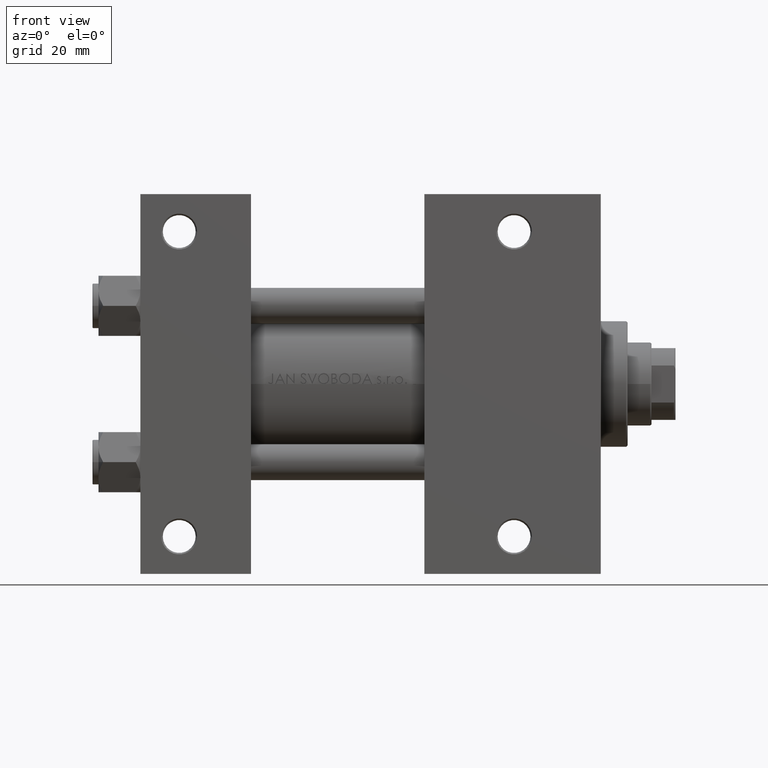
[diagram: clean part render]
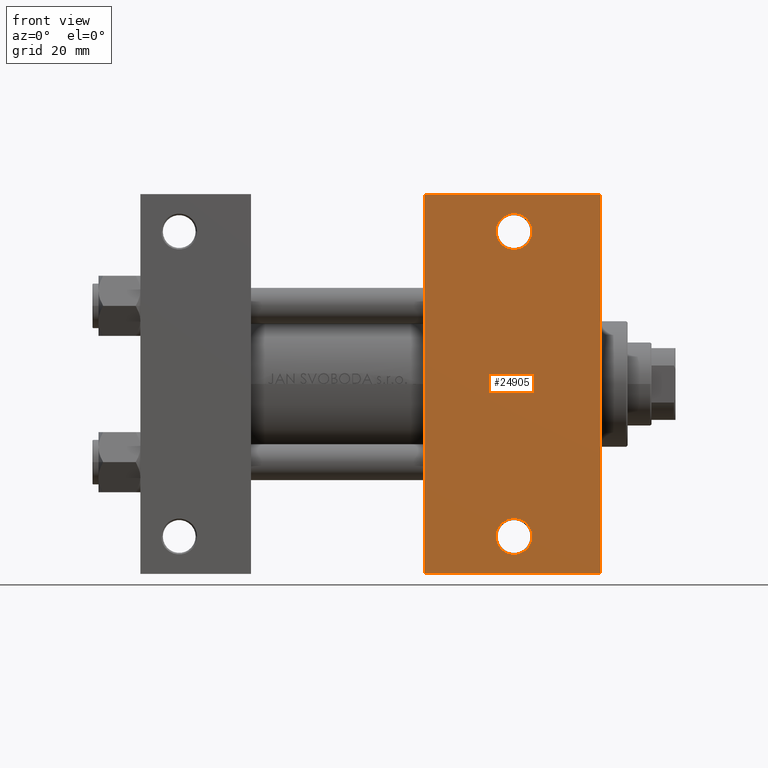
[diagram: same view with one face highlighted and labeled with its STEP entity id]
A machine part, front view. The second image highlights one B-rep face of the part: STEP entity #24905.
In plain terms, the highlighted planar face has unit normal (0, -1, 0).
Its self-contained STEP definition (entity closure, byte-faithful):
#263 = LINE ( 'NONE', #30866, #10830 ) ;
#782 = EDGE_LOOP ( 'NONE', ( #39078, #34487 ) ) ;
#856 = CARTESIAN_POINT ( 'NONE',  ( 94.99999999999998579, -63.50000000000000000, -37.50000000000000000 ) ) ;
#955 = AXIS2_PLACEMENT_3D ( 'NONE', #14881, #22396, #41695 ) ;
#1443 = EDGE_LOOP ( 'NONE', ( #25680, #5901 ) ) ;
#1496 = EDGE_CURVE ( 'NONE', #14700, #11943, #20316, .T. ) ;
#2037 = ORIENTED_EDGE ( 'NONE', *, *, #27111, .T. ) ;
#2235 = VECTOR ( 'NONE', #25699, 1000.000000000000000 ) ;
#2444 = ORIENTED_EDGE ( 'NONE', *, *, #17044, .F. ) ;
#2798 = CARTESIAN_POINT ( 'NONE',  ( 154.0000000000000000, 63.50000000000000000, -37.50000000000000000 ) ) ;
#4412 = VERTEX_POINT ( 'NONE', #37037 ) ;
#4544 = AXIS2_PLACEMENT_3D ( 'NONE', #9479, #35822, #13252 ) ;
#5225 = FACE_BOUND ( 'NONE', #1443, .T. ) ;
#5582 = CIRCLE ( 'NONE', #35229, 5.999499999999990507 ) ;
#5901 = ORIENTED_EDGE ( 'NONE', *, *, #48315, .T. ) ;
#6388 = CARTESIAN_POINT ( 'NONE',  ( 154.0000000000000000, 37.50000000000000000, -37.50000000000000000 ) ) ;
#6708 = VECTOR ( 'NONE', #34155, 1000.000000000000000 ) ;
#6710 = AXIS2_PLACEMENT_3D ( 'NONE', #33753, #18470, #18964 ) ;
#7315 = DIRECTION ( 'NONE',  ( -1.000000000000000000, 0.000000000000000000, 0.000000000000000000 ) ) ;
#7334 = CARTESIAN_POINT ( 'NONE',  ( 95.00000000000000000, 37.50000000000000000, -37.50000000000000000 ) ) ;
#9479 = CARTESIAN_POINT ( 'NONE',  ( 154.0000000000000000, 37.50000000000000000, -37.50000000000000000 ) ) ;
#9641 = DIRECTION ( 'NONE',  ( -1.000000000000000000, 0.000000000000000000, 0.000000000000000000 ) ) ;
#9675 = CIRCLE ( 'NONE', #37694, 5.999500000000004718 ) ;
#10830 = VECTOR ( 'NONE', #11826, 1000.000000000000000 ) ;
#11103 = CARTESIAN_POINT ( 'NONE',  ( 153.9999999999999716, -63.50000000000002842, -37.50000000000000000 ) ) ;
#11826 = DIRECTION ( 'NONE',  ( 1.000000000000000000, 0.000000000000000000, 0.000000000000000000 ) ) ;
#11943 = VERTEX_POINT ( 'NONE', #20943 ) ;
#13252 = DIRECTION ( 'NONE',  ( -1.000000000000000000, 0.000000000000000000, -0.000000000000000000 ) ) ;
#14700 = VERTEX_POINT ( 'NONE', #35062 ) ;
#14881 = CARTESIAN_POINT ( 'NONE',  ( 125.0000000000000000, -51.00000000000000000, -37.50000000000000000 ) ) ;
#16740 = VECTOR ( 'NONE', #31569, 1000.000000000000000 ) ;
#17044 = EDGE_CURVE ( 'NONE', #21639, #41169, #30384, .T. ) ;
#17054 = VERTEX_POINT ( 'NONE', #11103 ) ;
#18470 = DIRECTION ( 'NONE',  ( -0.000000000000000000, -0.000000000000000000, 1.000000000000000000 ) ) ;
#18964 = DIRECTION ( 'NONE',  ( -1.000000000000000000, 0.000000000000000000, 0.000000000000000000 ) ) ;
#20316 = CIRCLE ( 'NONE', #6710, 5.999500000000004718 ) ;
#20523 = PLANE ( 'NONE',  #4544 ) ;
#20881 = EDGE_CURVE ( 'NONE', #21639, #23392, #263, .T. ) ;
#20943 = CARTESIAN_POINT ( 'NONE',  ( 130.9994999999999834, 50.99999999999999289, -37.50000000000000000 ) ) ;
#20962 = VERTEX_POINT ( 'NONE', #28346 ) ;
#21425 = CARTESIAN_POINT ( 'NONE',  ( 125.0000000000000000, -51.00000000000000000, -37.50000000000000000 ) ) ;
#21639 = VERTEX_POINT ( 'NONE', #48273 ) ;
#22396 = DIRECTION ( 'NONE',  ( -0.000000000000000000, -0.000000000000000000, 1.000000000000000000 ) ) ;
#22848 = DIRECTION ( 'NONE',  ( -0.000000000000000000, -0.000000000000000000, 1.000000000000000000 ) ) ;
#23056 = LINE ( 'NONE', #38366, #16740 ) ;
#23392 = VERTEX_POINT ( 'NONE', #2798 ) ;
#24905 = ADVANCED_FACE ( 'NONE', ( #40323, #5225, #28780 ), #20523, .T. ) ;
#25680 = ORIENTED_EDGE ( 'NONE', *, *, #40579, .T. ) ;
#25699 = DIRECTION ( 'NONE',  ( 0.000000000000000000, -1.000000000000000000, 0.000000000000000000 ) ) ;
#27111 = EDGE_CURVE ( 'NONE', #23392, #17054, #40988, .T. ) ;
#28346 = CARTESIAN_POINT ( 'NONE',  ( 119.0005000000000024, -51.00000000000000000, -37.50000000000000000 ) ) ;
#28780 = FACE_OUTER_BOUND ( 'NONE', #44299, .T. ) ;
#29168 = ORIENTED_EDGE ( 'NONE', *, *, #33602, .T. ) ;
#30384 = LINE ( 'NONE', #7334, #6708 ) ;
#30866 = CARTESIAN_POINT ( 'NONE',  ( 95.00000000000000000, 63.50000000000000000, -37.50000000000000000 ) ) ;
#31106 = CARTESIAN_POINT ( 'NONE',  ( 124.9999999999999858, 50.99999999999999289, -37.50000000000000000 ) ) ;
#31569 = DIRECTION ( 'NONE',  ( -1.000000000000000000, 4.704334850106596780E-16, -0.000000000000000000 ) ) ;
#33602 = EDGE_CURVE ( 'NONE', #17054, #41169, #23056, .T. ) ;
#33753 = CARTESIAN_POINT ( 'NONE',  ( 124.9999999999999858, 50.99999999999999289, -37.50000000000000000 ) ) ;
#34155 = DIRECTION ( 'NONE',  ( 0.000000000000000000, -1.000000000000000000, 0.000000000000000000 ) ) ;
#34487 = ORIENTED_EDGE ( 'NONE', *, *, #37774, .T. ) ;
#35062 = CARTESIAN_POINT ( 'NONE',  ( 119.0004999999999882, 50.99999999999999289, -37.50000000000000000 ) ) ;
#35229 = AXIS2_PLACEMENT_3D ( 'NONE', #21425, #43739, #9641 ) ;
#35822 = DIRECTION ( 'NONE',  ( 0.000000000000000000, 0.000000000000000000, -1.000000000000000000 ) ) ;
#37037 = CARTESIAN_POINT ( 'NONE',  ( 130.9994999999999834, -51.00000000000000000, -37.50000000000000000 ) ) ;
#37694 = AXIS2_PLACEMENT_3D ( 'NONE', #31106, #22848, #7315 ) ;
#37774 = EDGE_CURVE ( 'NONE', #11943, #14700, #9675, .T. ) ;
#38366 = CARTESIAN_POINT ( 'NONE',  ( 94.99999999999998579, -63.50000000000000000, -37.50000000000000000 ) ) ;
#38770 = ORIENTED_EDGE ( 'NONE', *, *, #20881, .T. ) ;
#39078 = ORIENTED_EDGE ( 'NONE', *, *, #1496, .T. ) ;
#40208 = CIRCLE ( 'NONE', #955, 5.999499999999990507 ) ;
#40323 = FACE_BOUND ( 'NONE', #782, .T. ) ;
#40579 = EDGE_CURVE ( 'NONE', #20962, #4412, #40208, .T. ) ;
#40988 = LINE ( 'NONE', #6388, #2235 ) ;
#41169 = VERTEX_POINT ( 'NONE', #856 ) ;
#41695 = DIRECTION ( 'NONE',  ( -1.000000000000000000, 0.000000000000000000, 0.000000000000000000 ) ) ;
#43739 = DIRECTION ( 'NONE',  ( -0.000000000000000000, -0.000000000000000000, 1.000000000000000000 ) ) ;
#44299 = EDGE_LOOP ( 'NONE', ( #2444, #38770, #2037, #29168 ) ) ;
#48273 = CARTESIAN_POINT ( 'NONE',  ( 95.00000000000000000, 63.50000000000000000, -37.50000000000000000 ) ) ;
#48315 = EDGE_CURVE ( 'NONE', #4412, #20962, #5582, .T. ) ;